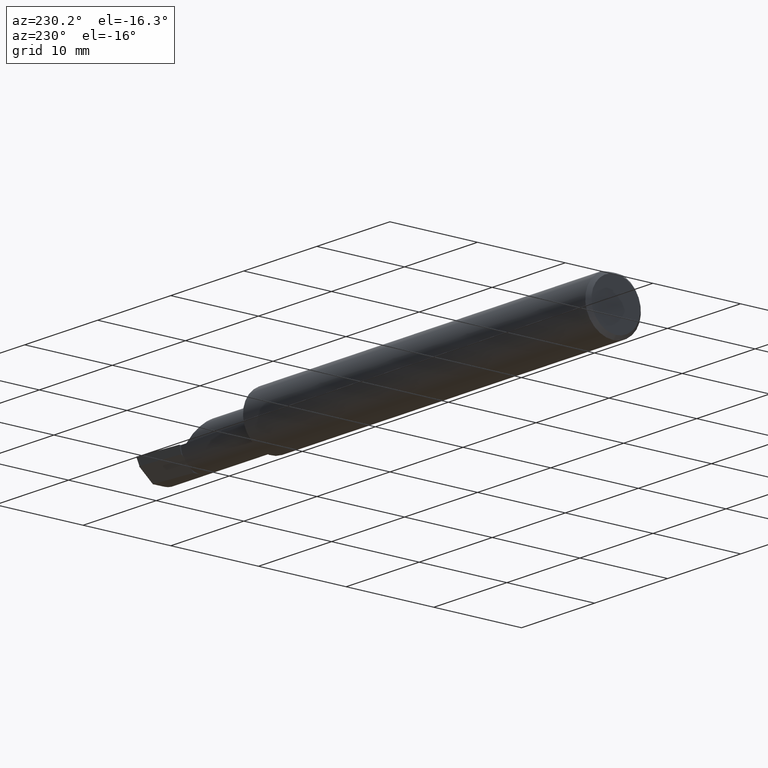
[diagram: clean part render]
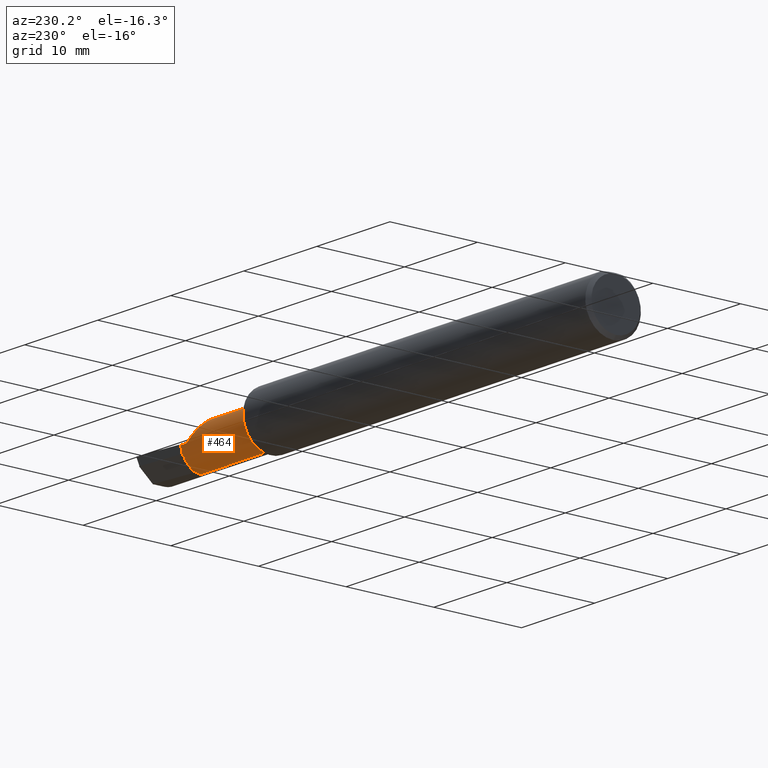
[diagram: same view with one face highlighted and labeled with its STEP entity id]
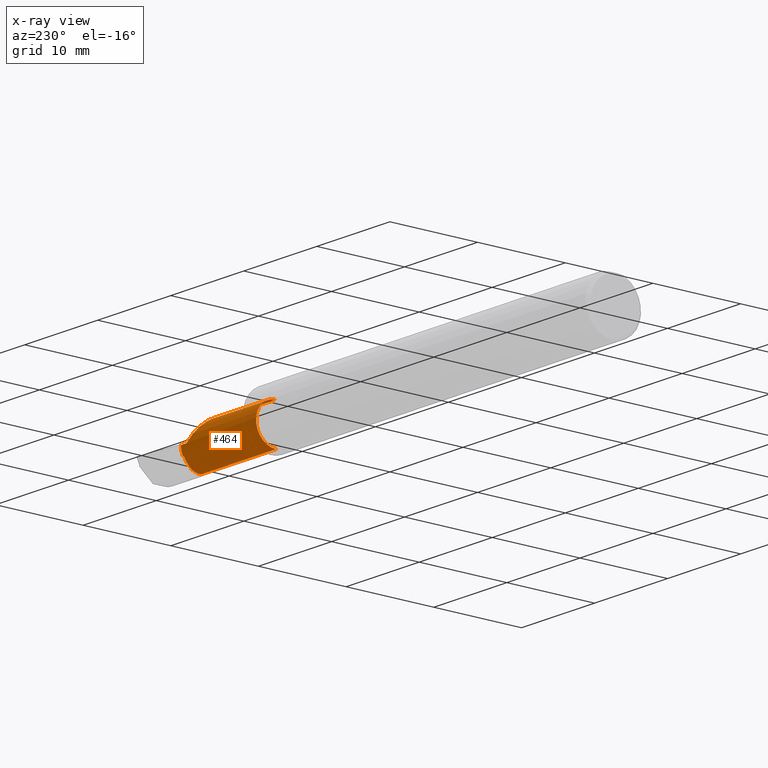
[diagram: x-ray of the same camera — body ghosted, the highlighted face saturated]
A machine part, auxiliary view. The second image highlights one B-rep face of the part: STEP entity #464.
The next image is the same camera in x-ray: the body ghosted, the highlighted face saturated — about 0% of this face is hidden behind the body in this view.
In plain terms, the highlighted cylindrical surface (edge-blend (fillet) strip) has radius 2.2606 mm, axis along (-1, -0, -0).
Its self-contained STEP definition (entity closure, byte-faithful):
#22 = DIRECTION ( 'NONE',  ( 0.000000000000000000, 0.000000000000000000, 1.000000000000000000 ) ) ;
#30 = CARTESIAN_POINT ( 'NONE',  ( 1.860000000000000098, -0.04385000000000000009, 0.000000000000000000 ) ) ;
#45 = AXIS2_PLACEMENT_3D ( 'NONE', #1232, #1247, #335 ) ;
#57 = CARTESIAN_POINT ( 'NONE',  ( 2.288937985906247530, -0.002059794679488745426, -0.07857848776395173762 ) ) ;
#59 = VECTOR ( 'NONE', #1313, 39.37007874015748143 ) ;
#73 = ORIENTED_EDGE ( 'NONE', *, *, #1156, .T. ) ;
#83 = CARTESIAN_POINT ( 'NONE',  ( 2.290000000000000036, 0.03585161589387594189, -0.03960621698553223186 ) ) ;
#85 = EDGE_CURVE ( 'NONE', #1019, #737, #1173, .T. ) ;
#91 = CARTESIAN_POINT ( 'NONE',  ( 2.290000000000000036, 0.03585161589387594189, -0.03960621698553223186 ) ) ;
#93 = VERTEX_POINT ( 'NONE', #1169 ) ;
#110 = CARTESIAN_POINT ( 'NONE',  ( 1.860000000000000098, 0.04514999999999999569, -3.414809992080329023E-17 ) ) ;
#121 = ORIENTED_EDGE ( 'NONE', *, *, #610, .F. ) ;
#124 = ORIENTED_EDGE ( 'NONE', *, *, #994, .T. ) ;
#151 = CARTESIAN_POINT ( 'NONE',  ( 2.260000000000000231, 0.04514931179509204529, 0.0003499999999999638925 ) ) ;
#177 = DIRECTION ( 'NONE',  ( -1.000000000000000000, -0.000000000000000000, -0.000000000000000000 ) ) ;
#178 = VERTEX_POINT ( 'NONE', #890 ) ;
#197 = CARTESIAN_POINT ( 'NONE',  ( 2.285242608473425641, 0.03631816732134428988, -0.03865313633247555863 ) ) ;
#200 = LINE ( 'NONE', #1218, #1052 ) ;
#214 = AXIS2_PLACEMENT_3D ( 'NONE', #440, #437, #22 ) ;
#220 = CARTESIAN_POINT ( 'NONE',  ( 1.884999549995949986, -0.04385000000000000009, 0.08899999999999999578 ) ) ;
#252 = DIRECTION ( 'NONE',  ( 1.000000000000000000, 0.000000000000000000, 0.000000000000000000 ) ) ;
#317 = CARTESIAN_POINT ( 'NONE',  ( 2.289293480241941126, -0.001989077639623209118, -0.07854087849327556770 ) ) ;
#324 = CARTESIAN_POINT ( 'NONE',  ( 1.884999549995949986, -0.04232863280787584059, 0.08899999999999999578 ) ) ;
#325 = DIRECTION ( 'NONE',  ( -1.000000000000000000, -0.000000000000000000, -0.000000000000000000 ) ) ;
#335 = DIRECTION ( 'NONE',  ( 0.000000000000000000, 0.000000000000000000, 1.000000000000000000 ) ) ;
#351 = EDGE_CURVE ( 'NONE', #178, #1051, #200, .T. ) ;
#358 = ORIENTED_EDGE ( 'NONE', *, *, #636, .T. ) ;
#374 =( BOUNDED_CURVE ( )  B_SPLINE_CURVE ( 3, ( #197, #501, #614, #83 ),
 .UNSPECIFIED., .F., .T. ) 
 B_SPLINE_CURVE_WITH_KNOTS ( ( 4, 4 ),
 ( 2.820608254191869335, 2.832531324869317135 ),
 .UNSPECIFIED. ) 
 CURVE ( )  GEOMETRIC_REPRESENTATION_ITEM ( )  RATIONAL_B_SPLINE_CURVE ( ( 1.000000000000000000, 0.9999881534005539141, 0.9999881534005539141, 1.000000000000000000 ) ) 
 REPRESENTATION_ITEM ( '' )  );
#384 = ORIENTED_EDGE ( 'NONE', *, *, #1021, .F. ) ;
#392 = ORIENTED_EDGE ( 'NONE', *, *, #1190, .F. ) ;
#399 = ORIENTED_EDGE ( 'NONE', *, *, #439, .T. ) ;
#419 = ORIENTED_EDGE ( 'NONE', *, *, #351, .T. ) ;
#437 = DIRECTION ( 'NONE',  ( -1.000000000000000000, -0.000000000000000000, -0.000000000000000000 ) ) ;
#439 = EDGE_CURVE ( 'NONE', #1148, #178, #804, .T. ) ;
#440 = CARTESIAN_POINT ( 'NONE',  ( 2.290000000000000036, -0.04385000000000000009, 0.000000000000000000 ) ) ;
#447 = AXIS2_PLACEMENT_3D ( 'NONE', #1096, #177, #562 ) ;
#464 = ADVANCED_FACE ( 'NONE', ( #1260 ), #522, .T. ) ;
#469 =( BOUNDED_CURVE ( )  B_SPLINE_CURVE ( 3, ( #151, #793, #764, #757 ),
 .UNSPECIFIED., .F., .F. ) 
 B_SPLINE_CURVE_WITH_KNOTS ( ( 4, 4 ),
 ( 4.716321574790802273, 6.283185307179586232 ),
 .UNSPECIFIED. ) 
 CURVE ( )  GEOMETRIC_REPRESENTATION_ITEM ( )  RATIONAL_B_SPLINE_CURVE ( ( 1.000000000000000000, 0.8056638636166326695, 0.8056638636166326695, 1.000000000000000000 ) ) 
 REPRESENTATION_ITEM ( '' )  );
#493 = CARTESIAN_POINT ( 'NONE',  ( 1.885000000000000009, -0.04080726561575169498, 0.08896101634190878293 ) ) ;
#501 = CARTESIAN_POINT ( 'NONE',  ( 2.286857406917958802, 0.03616454505259017460, -0.03897175512811047043 ) ) ;
#507 = CARTESIAN_POINT ( 'NONE',  ( 2.288937985906247530, -0.002059794679488745426, -0.07857848776395173762 ) ) ;
#508 = AXIS2_PLACEMENT_3D ( 'NONE', #30, #1043, #745 ) ;
#522 = CYLINDRICAL_SURFACE ( 'NONE', #508, 0.08899999999999999578 ) ;
#562 = DIRECTION ( 'NONE',  ( 0.000000000000000000, 0.000000000000000000, 1.000000000000000000 ) ) ;
#577 = EDGE_CURVE ( 'NONE', #958, #580, #374, .T. ) ;
#580 = VERTEX_POINT ( 'NONE', #91 ) ;
#592 = CARTESIAN_POINT ( 'NONE',  ( 2.290000000000000036, 0.04514999999999999569, -3.414809992080329023E-17 ) ) ;
#600 = CARTESIAN_POINT ( 'NONE',  ( 2.288937985906247530, -0.002059794679488745426, -0.07857848776395173762 ) ) ;
#605 = CARTESIAN_POINT ( 'NONE',  ( 2.171349999999999891, -0.04385000000000000009, 0.08899999999999999578 ) ) ;
#609 = ORIENTED_EDGE ( 'NONE', *, *, #85, .T. ) ;
#610 = EDGE_CURVE ( 'NONE', #992, #1125, #911, .T. ) ;
#614 = CARTESIAN_POINT ( 'NONE',  ( 2.288443222880010008, 0.03600902606772962006, -0.03928945244276216275 ) ) ;
#620 = AXIS2_PLACEMENT_3D ( 'NONE', #649, #252, #1068 ) ;
#636 = EDGE_CURVE ( 'NONE', #737, #1228, #697, .T. ) ;
#646 = VERTEX_POINT ( 'NONE', #600 ) ;
#649 = CARTESIAN_POINT ( 'NONE',  ( 1.885000000000000009, -0.04385000000000000009, 0.000000000000000000 ) ) ;
#667 = CARTESIAN_POINT ( 'NONE',  ( 2.286445840771017313, 0.02802661582150205513, -0.05585014933228257122 ) ) ;
#693 = ORIENTED_EDGE ( 'NONE', *, *, #1310, .T. ) ;
#697 = LINE ( 'NONE', #110, #59 ) ;
#737 = VERTEX_POINT ( 'NONE', #850 ) ;
#745 = DIRECTION ( 'NONE',  ( 0.000000000000000000, 0.000000000000000000, 1.000000000000000000 ) ) ;
#751 =( BOUNDED_CURVE ( )  B_SPLINE_CURVE ( 3, ( #806, #1209, #317, #507 ),
 .UNSPECIFIED., .F., .F. ) 
 B_SPLINE_CURVE_WITH_KNOTS ( ( 4, 4 ),
 ( 3.450653982310268653, 3.453353844081592072 ),
 .UNSPECIFIED. ) 
 CURVE ( )  GEOMETRIC_REPRESENTATION_ITEM ( )  RATIONAL_B_SPLINE_CURVE ( ( 1.000000000000000000, 0.9999993925622936430, 0.9999993925622936430, 1.000000000000000000 ) ) 
 REPRESENTATION_ITEM ( '' )  );
#757 = CARTESIAN_POINT ( 'NONE',  ( 2.171349999999999891, -0.04385000000000000009, 0.08899999999999999578 ) ) ;
#764 = CARTESIAN_POINT ( 'NONE',  ( 2.171350000000000335, 0.008122574649203021663, 0.08900000000000000966 ) ) ;
#793 = CARTESIAN_POINT ( 'NONE',  ( 2.208027827235976570, 0.04494492526557266471, 0.05232217276402370554 ) ) ;
#799 = CARTESIAN_POINT ( 'NONE',  ( 1.885000000000000009, -0.03928589842362753548, 0.08888289473684209130 ) ) ;
#804 = CIRCLE ( 'NONE', #214, 0.08899999999999999578 ) ;
#806 = CARTESIAN_POINT ( 'NONE',  ( 2.290000000000000036, -0.001847796191672966852, -0.07846537373417498962 ) ) ;
#807 = VECTOR ( 'NONE', #325, 39.37007874015748143 ) ;
#850 = CARTESIAN_POINT ( 'NONE',  ( 2.260000000000000231, 0.04514999999999997488, -3.414809992080329023E-17 ) ) ;
#863 = CARTESIAN_POINT ( 'NONE',  ( 1.884999549995949986, -0.04385000000000000009, 0.08899999999999999578 ) ) ;
#881 =( BOUNDED_CURVE ( )  B_SPLINE_CURVE ( 3, ( #57, #1288, #667, #1086 ),
 .UNSPECIFIED., .F., .T. ) 
 B_SPLINE_CURVE_WITH_KNOTS ( ( 4, 4 ),
 ( 4.414898696640120690, 5.047644286529844315 ),
 .UNSPECIFIED. ) 
 CURVE ( )  GEOMETRIC_REPRESENTATION_ITEM ( )  RATIONAL_B_SPLINE_CURVE ( ( 1.000000000000000000, 0.9669134457620006673, 0.9669134457620006673, 1.000000000000000000 ) ) 
 REPRESENTATION_ITEM ( '' )  );
#890 = CARTESIAN_POINT ( 'NONE',  ( 2.290000000000000036, -0.04384999999999997927, -0.08899999999999999578 ) ) ;
#898 = CIRCLE ( 'NONE', #620, 0.08899999999999999578 ) ;
#907 = DIRECTION ( 'NONE',  ( -1.000000000000000000, -0.000000000000000000, -0.000000000000000000 ) ) ;
#911 = LINE ( 'NONE', #927, #807 ) ;
#927 = CARTESIAN_POINT ( 'NONE',  ( 1.860000000000000098, -0.04385000000000000009, 0.08899999999999999578 ) ) ;
#958 = VERTEX_POINT ( 'NONE', #1000 ) ;
#992 = VERTEX_POINT ( 'NONE', #605 ) ;
#994 = EDGE_CURVE ( 'NONE', #93, #1125, #1211, .T. ) ;
#1000 = CARTESIAN_POINT ( 'NONE',  ( 2.285242608473425641, 0.03631816732134428988, -0.03865313633247555863 ) ) ;
#1010 = CARTESIAN_POINT ( 'NONE',  ( 1.885000000000000009, -0.04384999999999998621, -0.08899999999999999578 ) ) ;
#1019 = VERTEX_POINT ( 'NONE', #1230 ) ;
#1021 = EDGE_CURVE ( 'NONE', #1148, #646, #751, .T. ) ;
#1043 = DIRECTION ( 'NONE',  ( -1.000000000000000000, -0.000000000000000000, -0.000000000000000000 ) ) ;
#1051 = VERTEX_POINT ( 'NONE', #1010 ) ;
#1052 = VECTOR ( 'NONE', #907, 39.37007874015748143 ) ;
#1068 = DIRECTION ( 'NONE',  ( 0.000000000000000000, 0.000000000000000000, -1.000000000000000000 ) ) ;
#1073 = CIRCLE ( 'NONE', #45, 0.08899999999999999578 ) ;
#1082 = EDGE_LOOP ( 'NONE', ( #399, #419, #73, #124, #121, #392, #609, #358, #693, #1226, #1207, #384 ) ) ;
#1086 = CARTESIAN_POINT ( 'NONE',  ( 2.285242608473425641, 0.03631816732134428988, -0.03865313633247555863 ) ) ;
#1096 = CARTESIAN_POINT ( 'NONE',  ( 2.260000000000000231, -0.04385000000000000009, 0.000000000000000000 ) ) ;
#1125 = VERTEX_POINT ( 'NONE', #863 ) ;
#1148 = VERTEX_POINT ( 'NONE', #1168 ) ;
#1156 = EDGE_CURVE ( 'NONE', #1051, #93, #898, .T. ) ;
#1168 = CARTESIAN_POINT ( 'NONE',  ( 2.290000000000000036, -0.001847796191672966852, -0.07846537373417498962 ) ) ;
#1169 = CARTESIAN_POINT ( 'NONE',  ( 1.885000000000000009, -0.03928589842362753548, 0.08888289473684209130 ) ) ;
#1173 = CIRCLE ( 'NONE', #447, 0.08899999999999999578 ) ;
#1190 = EDGE_CURVE ( 'NONE', #1019, #992, #469, .T. ) ;
#1207 = ORIENTED_EDGE ( 'NONE', *, *, #1268, .F. ) ;
#1209 = CARTESIAN_POINT ( 'NONE',  ( 2.289647485154894468, -0.001918411434092623900, -0.07850317379378003724 ) ) ;
#1211 = B_SPLINE_CURVE_WITH_KNOTS ( 'NONE', 3,
 ( #799, #493, #324, #220 ),
 .UNSPECIFIED., .F., .F.,
 ( 4, 4 ),
 ( 0.000000000000000000, 0.0001159281800398605754 ),
 .UNSPECIFIED. ) ;
#1218 = CARTESIAN_POINT ( 'NONE',  ( 1.860000000000000098, -0.04384999999999998621, -0.08899999999999999578 ) ) ;
#1226 = ORIENTED_EDGE ( 'NONE', *, *, #577, .F. ) ;
#1228 = VERTEX_POINT ( 'NONE', #592 ) ;
#1230 = CARTESIAN_POINT ( 'NONE',  ( 2.260000000000000231, 0.04514931179509204529, 0.0003499999999999638925 ) ) ;
#1232 = CARTESIAN_POINT ( 'NONE',  ( 2.290000000000000036, -0.04385000000000000009, 0.000000000000000000 ) ) ;
#1247 = DIRECTION ( 'NONE',  ( -1.000000000000000000, -0.000000000000000000, -0.000000000000000000 ) ) ;
#1260 = FACE_OUTER_BOUND ( 'NONE', #1082, .T. ) ;
#1268 = EDGE_CURVE ( 'NONE', #646, #958, #881, .T. ) ;
#1288 = CARTESIAN_POINT ( 'NONE',  ( 2.287719783628060277, 0.01479621339370657158, -0.06961399813952577620 ) ) ;
#1310 = EDGE_CURVE ( 'NONE', #1228, #580, #1073, .T. ) ;
#1313 = DIRECTION ( 'NONE',  ( 1.000000000000000000, 0.000000000000000000, 0.000000000000000000 ) ) ;